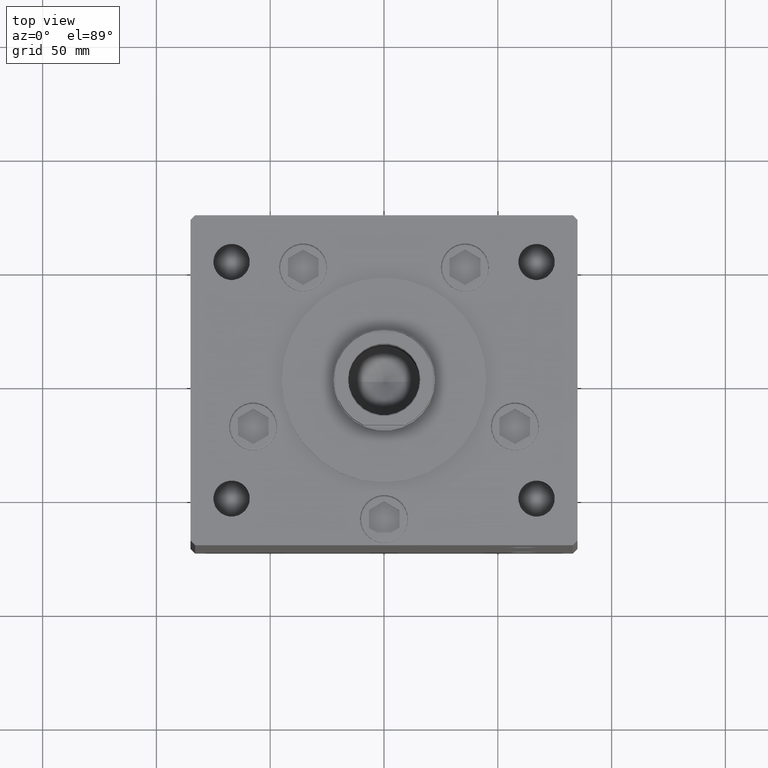
[diagram: clean part render]
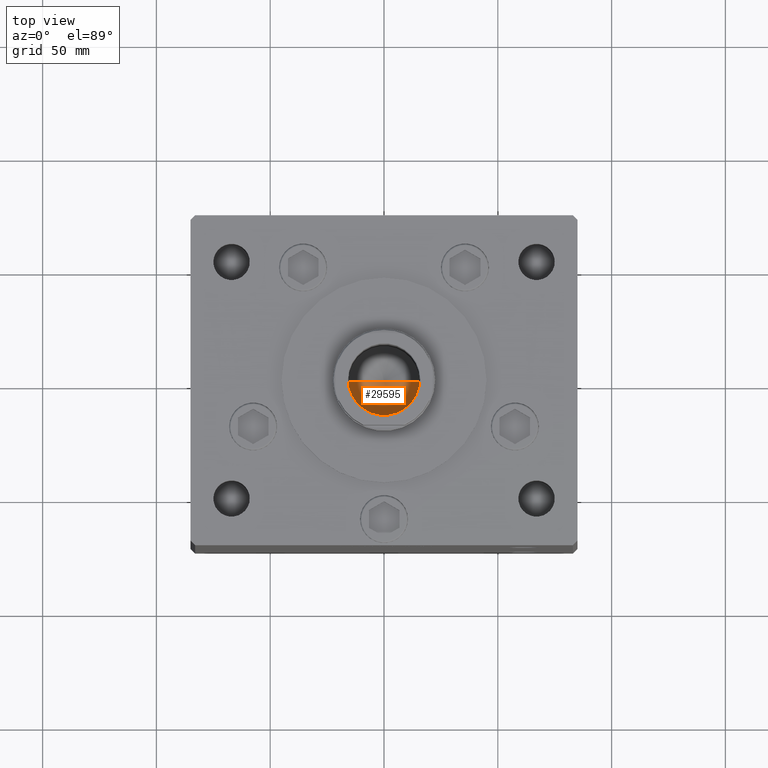
[diagram: same view with one face highlighted and labeled with its STEP entity id]
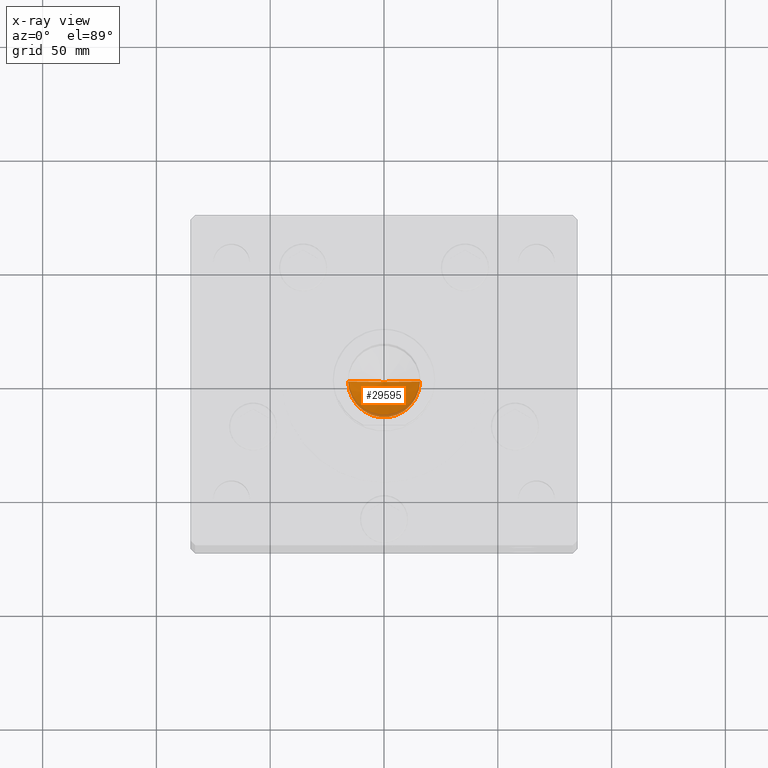
[diagram: x-ray of the same camera — body ghosted, the highlighted face saturated]
A machine part, top view. The second image highlights one B-rep face of the part: STEP entity #29595.
The next image is the same camera in x-ray: the body ghosted, the highlighted face saturated — about 8% of this face is hidden behind the body in this view.
In plain terms, the highlighted conical surface has half-angle 59 deg.
Its self-contained STEP definition (entity closure, byte-faithful):
#909 = CARTESIAN_POINT ( 'NONE',  ( -1.480675244360640996E-14, 0.000000000000000000, 128.5364452503159214 ) ) ;
#1383 = VECTOR ( 'NONE', #40498, 1000.000000000000000 ) ;
#4020 = VERTEX_POINT ( 'NONE', #34376 ) ;
#4311 = DIRECTION ( 'NONE',  ( 1.000000000000000000, 0.000000000000000000, 0.000000000000000000 ) ) ;
#4671 = ORIENTED_EDGE ( 'NONE', *, *, #15154, .T. ) ;
#5595 = VERTEX_POINT ( 'NONE', #909 ) ;
#7239 = VECTOR ( 'NONE', #26248, 1000.000000000000000 ) ;
#8622 = LINE ( 'NONE', #9139, #1383 ) ;
#9139 = CARTESIAN_POINT ( 'NONE',  ( 15.74999999999998934, 0.000000000000000000, 138.0000000000000000 ) ) ;
#11004 = ORIENTED_EDGE ( 'NONE', *, *, #11738, .F. ) ;
#11491 = EDGE_LOOP ( 'NONE', ( #11004, #4671, #12915 ) ) ;
#11738 = EDGE_CURVE ( 'NONE', #5595, #4020, #8622, .T. ) ;
#12417 = DIRECTION ( 'NONE',  ( -0.000000000000000000, -0.000000000000000000, 1.000000000000000000 ) ) ;
#12915 = ORIENTED_EDGE ( 'NONE', *, *, #31098, .T. ) ;
#15154 = EDGE_CURVE ( 'NONE', #5595, #51609, #42827, .T. ) ;
#20370 = CARTESIAN_POINT ( 'NONE',  ( 0.000000000000000000, 0.000000000000000000, 138.0000000000000000 ) ) ;
#22537 = CARTESIAN_POINT ( 'NONE',  ( -15.74999999999998934, 1.928818708657080161E-15, 138.0000000000000000 ) ) ;
#26248 = DIRECTION ( 'NONE',  ( -0.8571673007021118895, 1.049727191138618079E-16, 0.5150380749100549327 ) ) ;
#28623 = AXIS2_PLACEMENT_3D ( 'NONE', #47488, #12417, #36932 ) ;
#29595 = ADVANCED_FACE ( 'NONE', ( #51459 ), #37880, .F. ) ;
#31098 = EDGE_CURVE ( 'NONE', #51609, #4020, #32870, .T. ) ;
#32870 = CIRCLE ( 'NONE', #37951, 15.74999999999998934 ) ;
#34376 = CARTESIAN_POINT ( 'NONE',  ( 15.74999999999998934, 0.000000000000000000, 138.0000000000000000 ) ) ;
#36932 = DIRECTION ( 'NONE',  ( 1.000000000000000000, 0.000000000000000000, 0.000000000000000000 ) ) ;
#37880 = CONICAL_SURFACE ( 'NONE', #28623, 15.74999999999998934, 1.029744258676653645 ) ;
#37951 = AXIS2_PLACEMENT_3D ( 'NONE', #20370, #41448, #4311 ) ;
#40498 = DIRECTION ( 'NONE',  ( 0.8571673007021118895, 0.000000000000000000, 0.5150380749100549327 ) ) ;
#41448 = DIRECTION ( 'NONE',  ( -0.000000000000000000, -0.000000000000000000, 1.000000000000000000 ) ) ;
#42827 = LINE ( 'NONE', #22537, #7239 ) ;
#47488 = CARTESIAN_POINT ( 'NONE',  ( 0.000000000000000000, 0.000000000000000000, 138.0000000000000000 ) ) ;
#50058 = CARTESIAN_POINT ( 'NONE',  ( -15.74999999999998934, 1.928818708657080161E-15, 138.0000000000000000 ) ) ;
#51459 = FACE_OUTER_BOUND ( 'NONE', #11491, .T. ) ;
#51609 = VERTEX_POINT ( 'NONE', #50058 ) ;